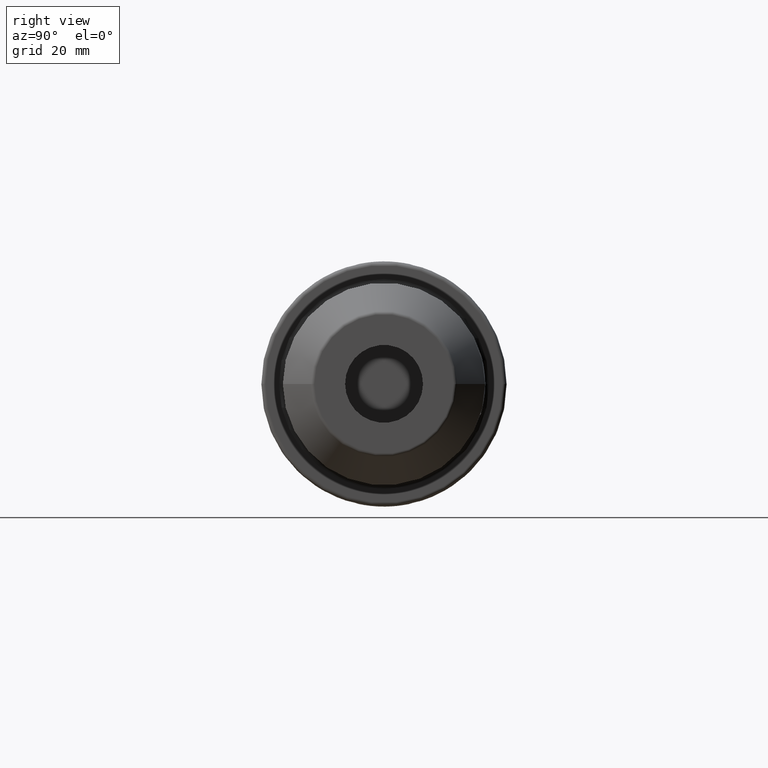
[diagram: clean part render]
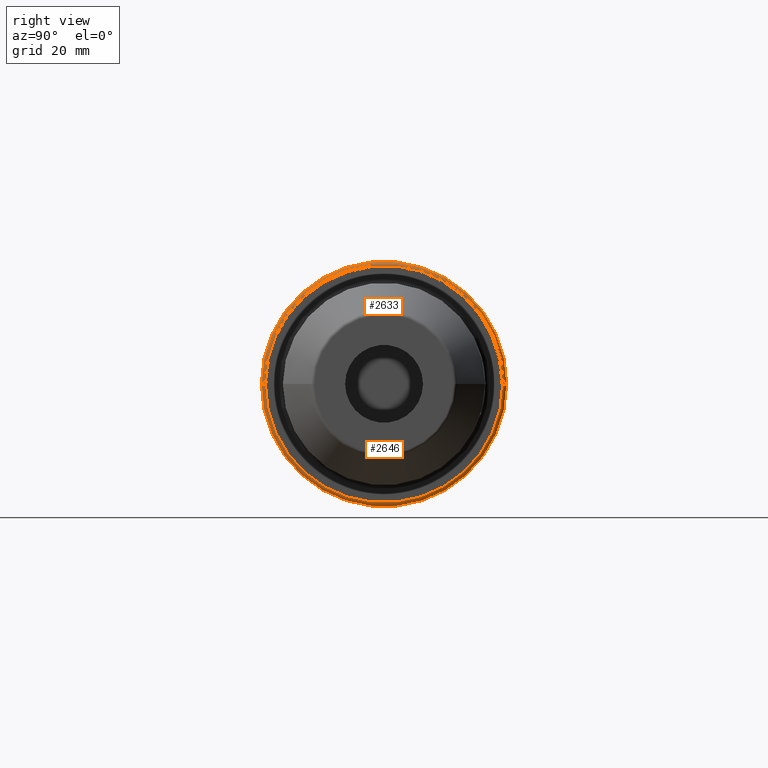
[diagram: same view with one multi-face feature highlighted, each face labeled with its STEP entity id]
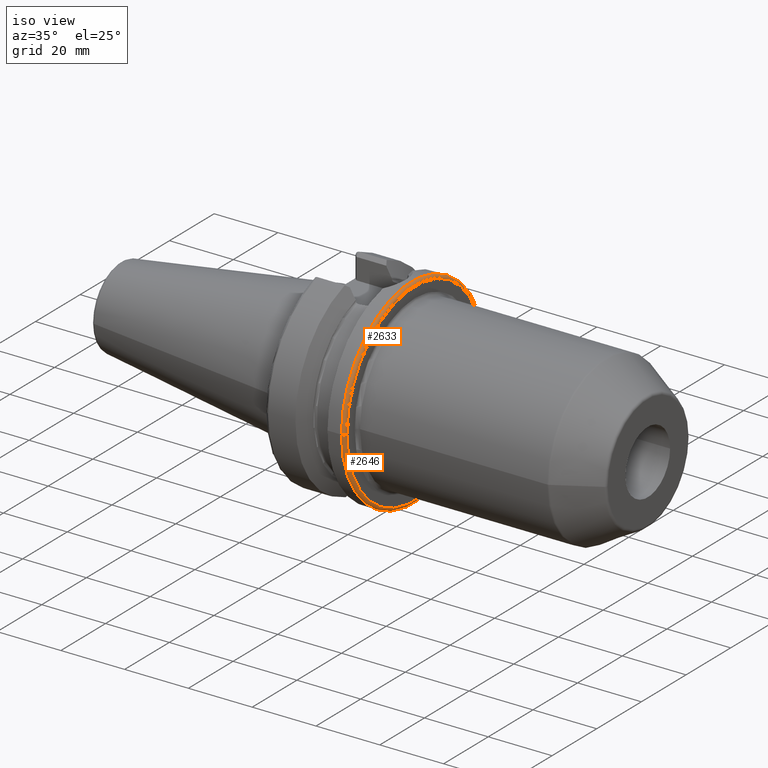
[diagram: same view with one multi-face feature highlighted, each face labeled with its STEP entity id]
A machine part, right view. The highlighted faces form ONE feature: a constant-radius fillet chain: 2 tangent blend faces with common blend radius 1 mm. The faces share edges in the B-rep.
A second angle (iso view) of the same feature is appended — it is thin or edge-on in the first view.
Their STEP definitions:
[1] entity #2633 (Torus):
#792=CARTESIAN_POINT('',(2.6E1,0.E0,0.E0));
#793=DIRECTION('',(1.E0,0.E0,0.E0));
#794=DIRECTION('',(0.E0,1.E0,0.E0));
#795=AXIS2_PLACEMENT_3D('',#792,#793,#794);
#816=CARTESIAN_POINT('',(2.7E1,0.E0,0.E0));
#817=DIRECTION('',(1.E0,0.E0,0.E0));
#818=DIRECTION('',(0.E0,1.E0,0.E0));
#819=AXIS2_PLACEMENT_3D('',#816,#817,#818);
#821=CARTESIAN_POINT('',(2.6E1,3.04875E1,0.E0));
#822=DIRECTION('',(0.E0,0.E0,1.E0));
#823=DIRECTION('',(1.E0,0.E0,0.E0));
#824=AXIS2_PLACEMENT_3D('',#821,#822,#823);
#826=CARTESIAN_POINT('',(2.6E1,-3.04875E1,0.E0));
#827=DIRECTION('',(0.E0,0.E0,-1.E0));
#828=DIRECTION('',(1.E0,0.E0,0.E0));
#829=AXIS2_PLACEMENT_3D('',#826,#827,#828);
#1368=CARTESIAN_POINT('',(2.6E1,3.14875E1,0.E0));
#1369=VERTEX_POINT('',#1368);
#1370=CARTESIAN_POINT('',(2.6E1,-3.14875E1,0.E0));
#1371=VERTEX_POINT('',#1370);
#1438=CARTESIAN_POINT('',(2.7E1,3.04875E1,0.E0));
#1439=VERTEX_POINT('',#1438);
#1440=CARTESIAN_POINT('',(2.7E1,-3.04875E1,0.E0));
#1441=VERTEX_POINT('',#1440);
#2619=CARTESIAN_POINT('',(2.6E1,0.E0,0.E0));
#2620=DIRECTION('',(1.E0,0.E0,0.E0));
#2621=DIRECTION('',(0.E0,-1.E0,0.E0));
#2622=AXIS2_PLACEMENT_3D('',#2619,#2620,#2621);
#2623=TOROIDAL_SURFACE('',#2622,3.04875E1,1.E0);
#2625=ORIENTED_EDGE('',*,*,#2624,.F.);
#2627=ORIENTED_EDGE('',*,*,#2626,.T.);
#2629=ORIENTED_EDGE('',*,*,#2628,.T.);
#2630=ORIENTED_EDGE('',*,*,#2610,.F.);
#2631=EDGE_LOOP('',(#2625,#2627,#2629,#2630));
#2632=FACE_OUTER_BOUND('',#2631,.F.);
#2633=ADVANCED_FACE('',(#2632),#2623,.T.);
#796=CIRCLE('',#795,3.14875E1);
#820=CIRCLE('',#819,3.04875E1);
#825=CIRCLE('',#824,1.E0);
#830=CIRCLE('',#829,1.E0);
#2610=EDGE_CURVE('',#1369,#1371,#796,.T.);
#2624=EDGE_CURVE('',#1439,#1369,#825,.T.);
#2626=EDGE_CURVE('',#1439,#1441,#820,.T.);
#2628=EDGE_CURVE('',#1441,#1371,#830,.T.);
[2] entity #2646 (Torus):
#255=CARTESIAN_POINT('',(2.6E1,0.E0,0.E0));
#256=DIRECTION('',(-1.E0,0.E0,0.E0));
#257=DIRECTION('',(0.E0,1.E0,0.E0));
#258=AXIS2_PLACEMENT_3D('',#255,#256,#257);
#821=CARTESIAN_POINT('',(2.6E1,3.04875E1,0.E0));
#822=DIRECTION('',(0.E0,0.E0,1.E0));
#823=DIRECTION('',(1.E0,0.E0,0.E0));
#824=AXIS2_PLACEMENT_3D('',#821,#822,#823);
#826=CARTESIAN_POINT('',(2.6E1,-3.04875E1,0.E0));
#827=DIRECTION('',(0.E0,0.E0,-1.E0));
#828=DIRECTION('',(1.E0,0.E0,0.E0));
#829=AXIS2_PLACEMENT_3D('',#826,#827,#828);
#831=CARTESIAN_POINT('',(2.7E1,0.E0,0.E0));
#832=DIRECTION('',(-1.E0,0.E0,0.E0));
#833=DIRECTION('',(0.E0,1.E0,0.E0));
#834=AXIS2_PLACEMENT_3D('',#831,#832,#833);
#1368=CARTESIAN_POINT('',(2.6E1,3.14875E1,0.E0));
#1369=VERTEX_POINT('',#1368);
#1370=CARTESIAN_POINT('',(2.6E1,-3.14875E1,0.E0));
#1371=VERTEX_POINT('',#1370);
#1438=CARTESIAN_POINT('',(2.7E1,3.04875E1,0.E0));
#1439=VERTEX_POINT('',#1438);
#1440=CARTESIAN_POINT('',(2.7E1,-3.04875E1,0.E0));
#1441=VERTEX_POINT('',#1440);
#2634=CARTESIAN_POINT('',(2.6E1,0.E0,0.E0));
#2635=DIRECTION('',(1.E0,0.E0,0.E0));
#2636=DIRECTION('',(0.E0,-1.E0,0.E0));
#2637=AXIS2_PLACEMENT_3D('',#2634,#2635,#2636);
#2638=TOROIDAL_SURFACE('',#2637,3.04875E1,1.E0);
#2639=ORIENTED_EDGE('',*,*,#2624,.T.);
#2640=ORIENTED_EDGE('',*,*,#1901,.T.);
#2641=ORIENTED_EDGE('',*,*,#2628,.F.);
#2643=ORIENTED_EDGE('',*,*,#2642,.F.);
#2644=EDGE_LOOP('',(#2639,#2640,#2641,#2643));
#2645=FACE_OUTER_BOUND('',#2644,.F.);
#2646=ADVANCED_FACE('',(#2645),#2638,.T.);
#259=CIRCLE('',#258,3.14875E1);
#825=CIRCLE('',#824,1.E0);
#830=CIRCLE('',#829,1.E0);
#835=CIRCLE('',#834,3.04875E1);
#1901=EDGE_CURVE('',#1369,#1371,#259,.T.);
#2624=EDGE_CURVE('',#1439,#1369,#825,.T.);
#2628=EDGE_CURVE('',#1441,#1371,#830,.T.);
#2642=EDGE_CURVE('',#1439,#1441,#835,.T.);